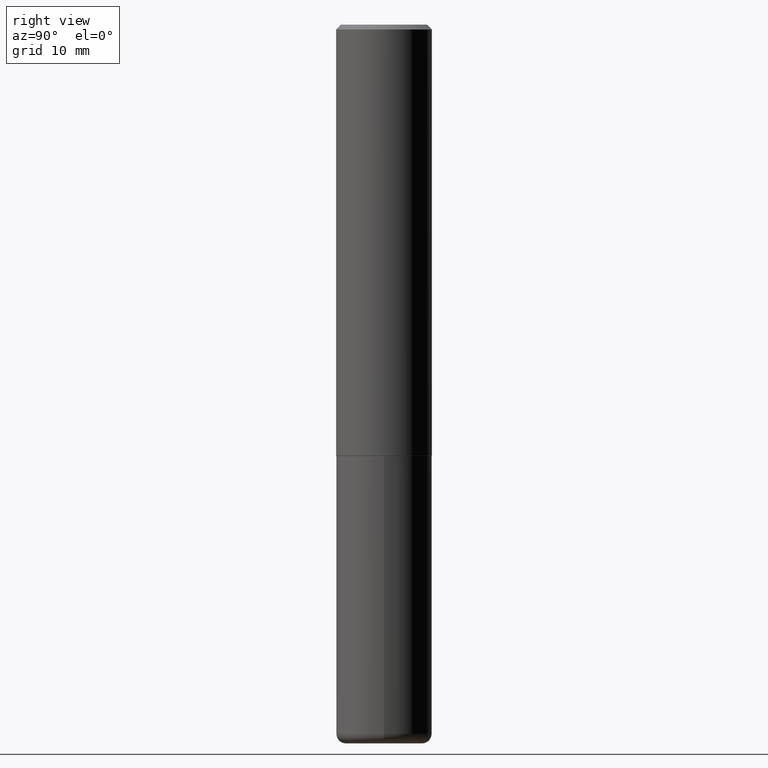
[diagram: clean part render]
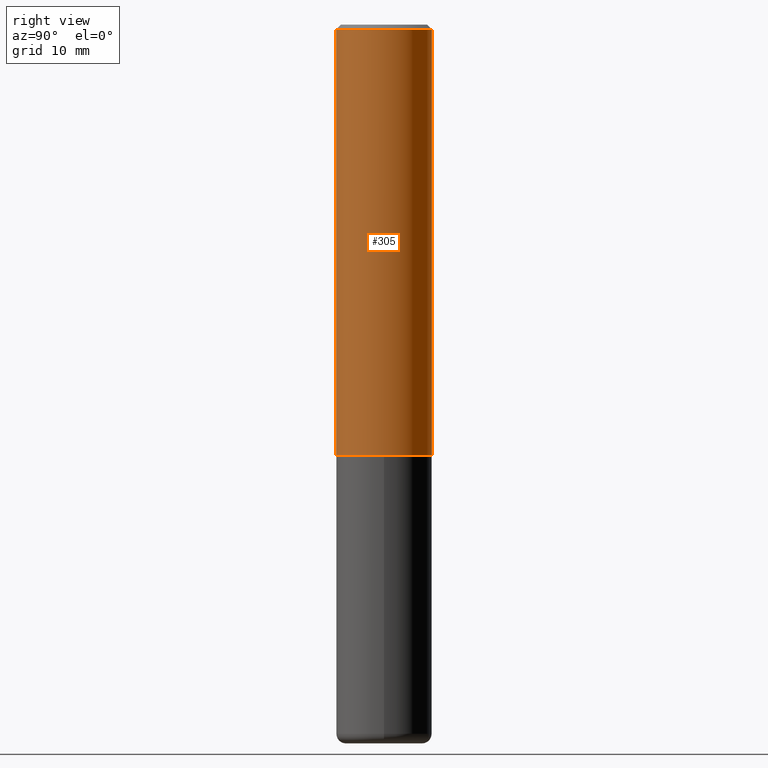
[diagram: same view with one face highlighted and labeled with its STEP entity id]
A machine part, right view. The second image highlights one B-rep face of the part: STEP entity #305.
In plain terms, the highlighted cylindrical surface (partial cylindrical patch) has radius 5 mm, axis along (-0, 0, 1).
Its self-contained STEP definition (entity closure, byte-faithful):
#6 = FACE_OUTER_BOUND ( 'NONE', #246, .T. ) ;
#7 = CARTESIAN_POINT ( 'NONE',  ( 4.327538351314362007E-29, -6.186165631462201115E-15, -1.770699999999999497 ) ) ;
#11 = DIRECTION ( 'NONE',  ( -2.443970379688463607E-29, 3.493627170871520955E-15, 1.000000000000000000 ) ) ;
#15 = VECTOR ( 'NONE', #142, 39.37007874015748143 ) ;
#19 = EDGE_CURVE ( 'NONE', #84, #118, #161, .T. ) ;
#41 = CARTESIAN_POINT ( 'NONE',  ( 4.887940759376938213E-31, -6.987254341743056504E-17, -0.02000000000000004205 ) ) ;
#53 = VECTOR ( 'NONE', #190, 39.37007874015748143 ) ;
#58 = CARTESIAN_POINT ( 'NONE',  ( 1.398703375343757985E-15, 0.1968500000000001360, -6.877205085860593881E-16 ) ) ;
#64 = AXIS2_PLACEMENT_3D ( 'NONE', #41, #11, #91 ) ;
#84 = VERTEX_POINT ( 'NONE', #324 ) ;
#91 = DIRECTION ( 'NONE',  ( -6.982962677686265133E-15, -1.000000000000000000, 3.491137977679279029E-15 ) ) ;
#103 = DIRECTION ( 'NONE',  ( -6.982962677686265922E-15, -1.000000000000000000, 3.493627170871520955E-15 ) ) ;
#108 = VERTEX_POINT ( 'NONE', #157 ) ;
#110 = VERTEX_POINT ( 'NONE', #120 ) ;
#113 = ORIENTED_EDGE ( 'NONE', *, *, #155, .T. ) ;
#118 = VERTEX_POINT ( 'NONE', #380 ) ;
#120 = CARTESIAN_POINT ( 'NONE',  ( -1.350489030861325626E-15, -0.1968500000000001082, -0.01999999999999935510 ) ) ;
#132 = DIRECTION ( 'NONE',  ( -2.443970379688463607E-29, 3.493627170871520955E-15, 1.000000000000000000 ) ) ;
#142 = DIRECTION ( 'NONE',  ( -2.443970379688463326E-29, 3.493627170871520561E-15, 1.000000000000000000 ) ) ;
#155 = EDGE_CURVE ( 'NONE', #108, #84, #306, .T. ) ;
#157 = CARTESIAN_POINT ( 'NONE',  ( -1.374596203102499996E-15, -0.1968500000000064365, -1.770699999999998608 ) ) ;
#161 = LINE ( 'NONE', #58, #53 ) ;
#162 = DIRECTION ( 'NONE',  ( -2.443970379688463607E-29, 3.493627170871520955E-15, 1.000000000000000000 ) ) ;
#179 = AXIS2_PLACEMENT_3D ( 'NONE', #7, #162, #385 ) ;
#186 = CIRCLE ( 'NONE', #64, 0.1968500000000000527 ) ;
#190 = DIRECTION ( 'NONE',  ( -2.443970379688463326E-29, 3.493627170871520561E-15, 1.000000000000000000 ) ) ;
#203 = LINE ( 'NONE', #391, #15 ) ;
#206 = CARTESIAN_POINT ( 'NONE',  ( 0.000000000000000000, 0.000000000000000000, 0.000000000000000000 ) ) ;
#231 = EDGE_CURVE ( 'NONE', #110, #118, #186, .T. ) ;
#246 = EDGE_LOOP ( 'NONE', ( #113, #368, #248, #284 ) ) ;
#248 = ORIENTED_EDGE ( 'NONE', *, *, #231, .F. ) ;
#284 = ORIENTED_EDGE ( 'NONE', *, *, #299, .F. ) ;
#299 = EDGE_CURVE ( 'NONE', #108, #110, #203, .T. ) ;
#305 = ADVANCED_FACE ( 'NONE', ( #6 ), #332, .T. ) ;
#306 = CIRCLE ( 'NONE', #179, 0.1968500000000002470 ) ;
#324 = CARTESIAN_POINT ( 'NONE',  ( 1.398703375343780073E-15, 0.1968499999999940575, -1.770700000000000385 ) ) ;
#332 = CYLINDRICAL_SURFACE ( 'NONE', #360, 0.1968500000000001360 ) ;
#360 = AXIS2_PLACEMENT_3D ( 'NONE', #206, #132, #103 ) ;
#368 = ORIENTED_EDGE ( 'NONE', *, *, #19, .T. ) ;
#380 = CARTESIAN_POINT ( 'NONE',  ( 1.374596203102542200E-15, 0.1968499999999999694, -0.02000000000000072900 ) ) ;
#385 = DIRECTION ( 'NONE',  ( -6.982962677686265922E-15, -1.000000000000000000, 4.163344669033670112E-15 ) ) ;
#391 = CARTESIAN_POINT ( 'NONE',  ( -1.374596203102542397E-15, -0.1968500000000001360, 6.877205085860593881E-16 ) ) ;